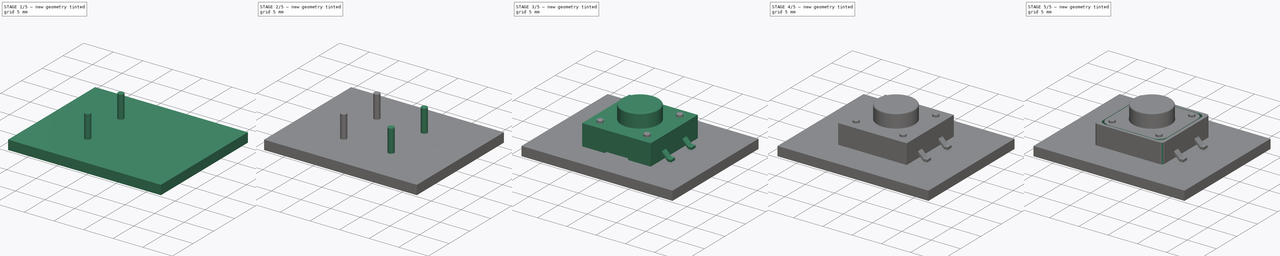
[diagram: build sequence overview — one tinted view per stage of 5, left to right]
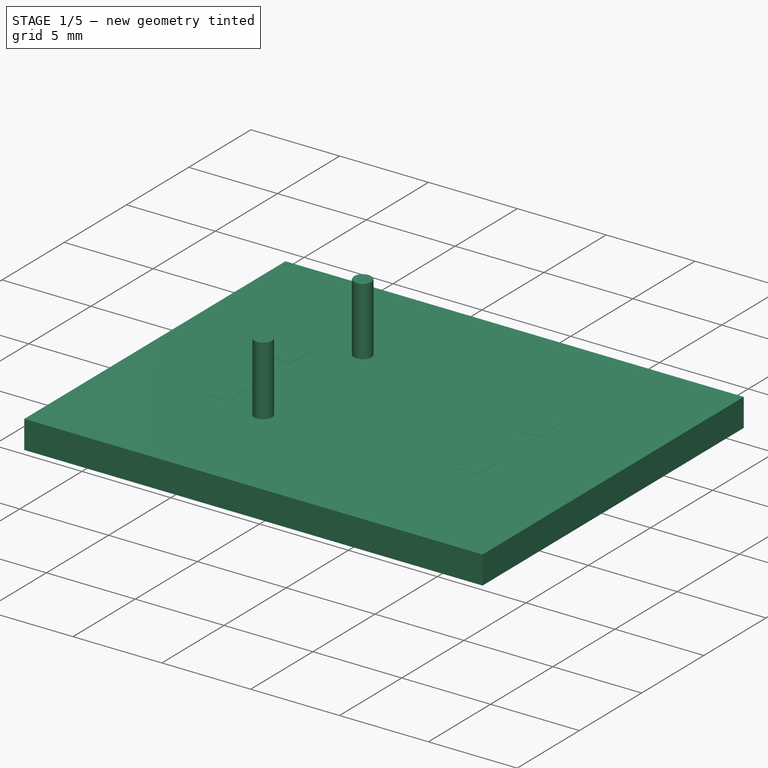
[diagram: stage 1 of 5 — iso view after this stage's code; geometry added in this stage tinted green]
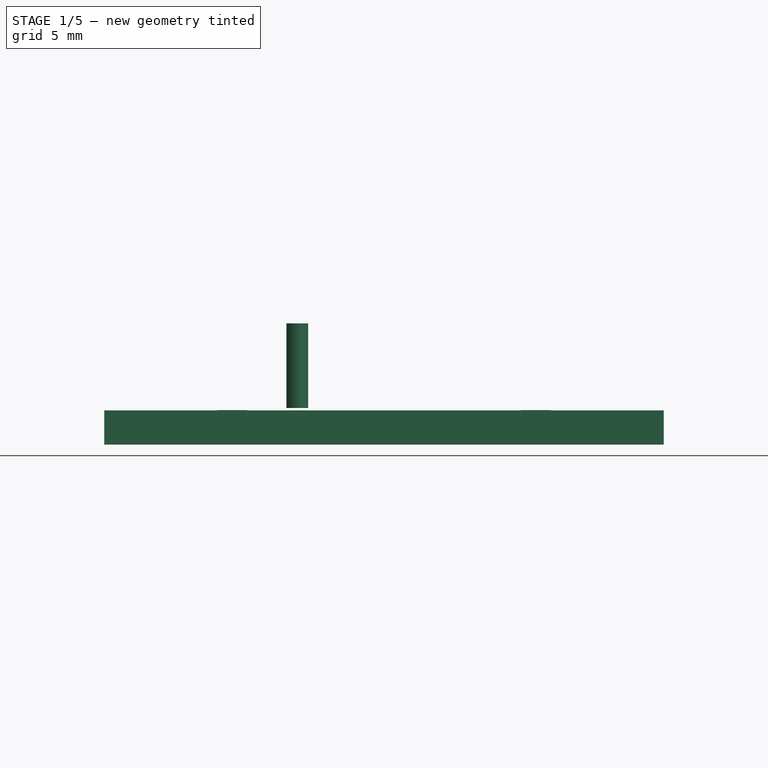
[diagram: stage 1 of 5 — front view after this stage's code; geometry added in this stage tinted green]
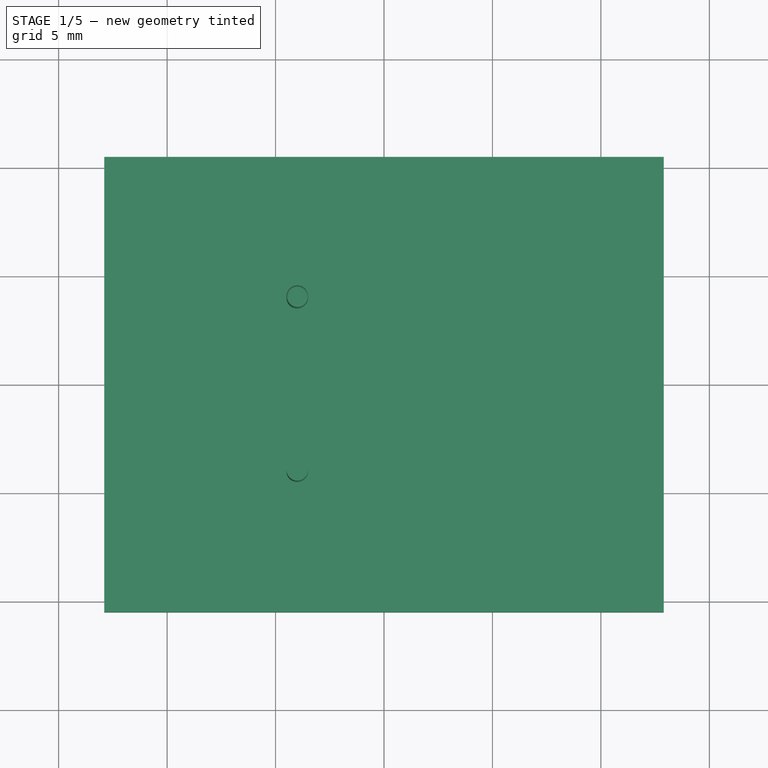
[diagram: stage 1 of 5 — top view after this stage's code; geometry added in this stage tinted green]
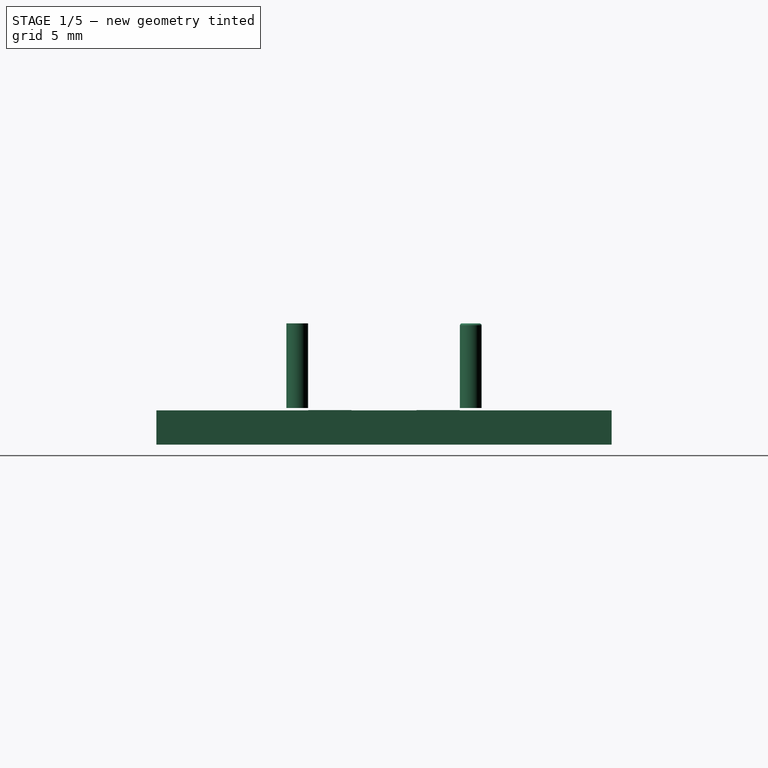
[diagram: stage 1 of 5 — right view after this stage's code; geometry added in this stage tinted green]
FCSTD DOCUMENT  (FreeCAD 0.18R16110 (Git))
Label: Bright_TSA123G60-250
License: All rights reserved
LicenseURL: http://en.wikipedia.org/wiki/All_rights_reserved
objects: Sketcher::SketchObject×9, PartDesign::Pocket×6, Part::Cylinder×5, Part::Fillet×5, Part::FeaturePython×4, PartDesign::Pad×3, PartDesign::Mirrored×3, PartDesign::Fillet×2, PartDesign::Plane×1, PartDesign::LinearPattern×1, PartDesign::MultiTransform×1, PartDesign::Body×1, App::DocumentObjectGroup×1, Part::Feature×1
note: 51 computed .brp shape members not serialized (recipe doc carries the construction recipe); baked Part::Feature solids carry a one-line shape summary decoded from their .brp

FEATURE [Part::Cylinder] Cylinder002
  Angle = 360
  AttacherType = Attacher::AttachEngine3D
  Height = 3.9
  Placement = pos=(-4,4,0.1) rot=(0,0,1;0rad)
  Radius = 0.5
FEATURE [Part::Cylinder] Cylinder004
  Angle = 360
  AttacherType = Attacher::AttachEngine3D
  Height = 3.9
  Placement = pos=(-4,-4,0.1) rot=(0,0,1;0rad)
  Radius = 0.5
FEATURE [Part::Fillet] Fillet006
  Base = -> Cylinder002
  Edges = 1 edges r=0.1: [Edge1]
FEATURE [Part::FeaturePython] FCrtYd_lines  label="FCrtYd"  # a2plus imported part (geometry in sourceFile) (typed FeaturePython)
  fixedPosition = true
FEATURE [Part::FeaturePython] Filk_lines  label="FrontSilk"  # a2plus imported part (geometry in sourceFile) (typed FeaturePython)
  fixedPosition = true
FEATURE [Part::FeaturePython] TopPads  # a2plus imported part (geometry in sourceFile) (typed FeaturePython)
  fixedPosition = true
FEATURE [Part::FeaturePython] newPCB  label="Pcb"  # a2plus imported part (geometry in sourceFile) (typed FeaturePython)
  fixedPosition = true
FEATURE [App::DocumentObjectGroup] TSA123G60_250_fp
  Group = -> [FCrtYd_lines,Filk_lines,TopPads,newPCB]
FEATURE [Part::Feature] Shape  label="Bright_TSA123G60-250"
  shape: bbox 14.8 x 11.5 x 6 mm, 93 faces (baked)
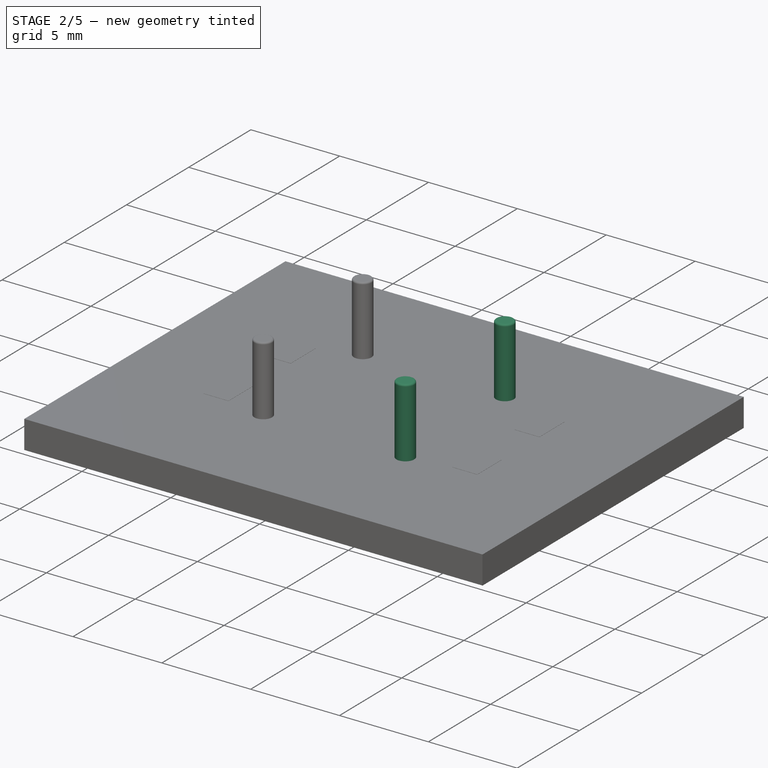
[diagram: stage 2 of 5 — iso view after this stage's code; geometry added in this stage tinted green]
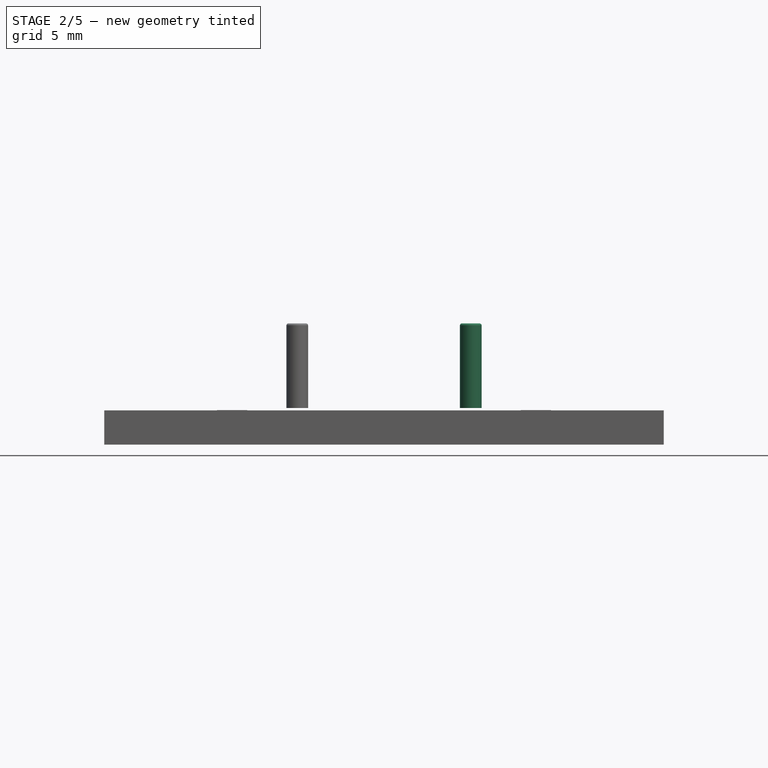
[diagram: stage 2 of 5 — front view after this stage's code; geometry added in this stage tinted green]
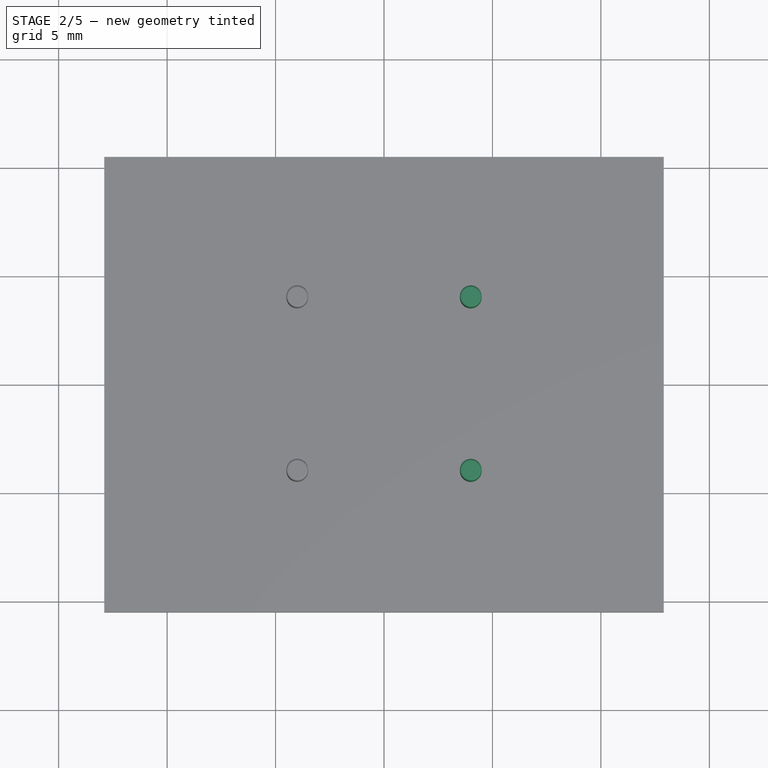
[diagram: stage 2 of 5 — top view after this stage's code; geometry added in this stage tinted green]
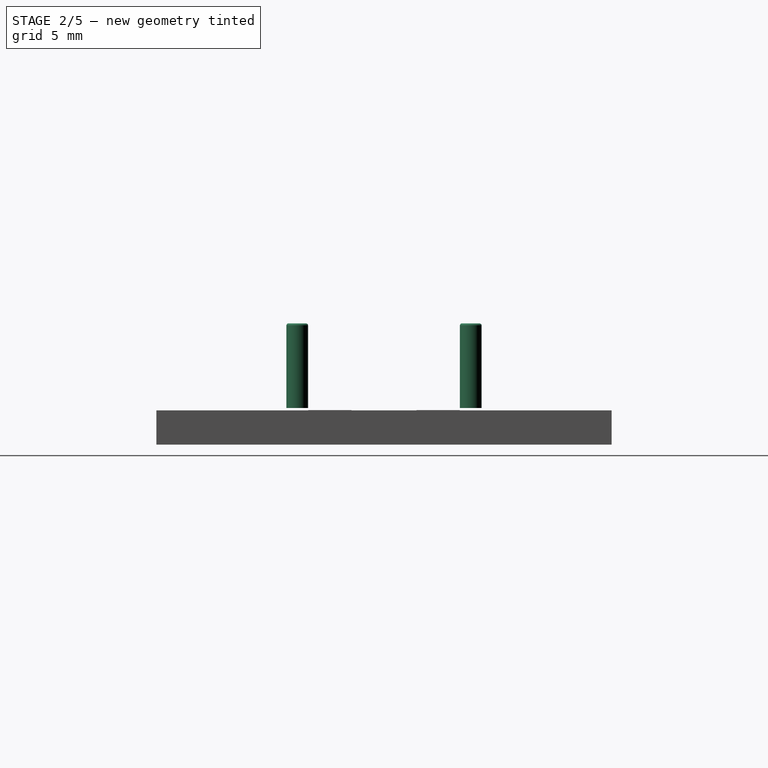
[diagram: stage 2 of 5 — right view after this stage's code; geometry added in this stage tinted green]
FEATURE [PartDesign::Body] Body
  Group = -> [Sketch,Pad,DatumPlane,Sketch001,Pad001,MultiTransform,LinearPattern,Mirrored,Sketch002,Pocket,Sketch003,Pocket001,Sketch005,Pocket002,Mirrored001,Sketch006,Pocket003,Mirrored002,Fillet,Sketch007,Pocket004,Sketch008,Pocket005,Fillet001,Sketch009,Pad002]
  Origin = -> Origin
  Tip = -> Pad002
FEATURE [Part::Cylinder] Cylinder001
  Angle = 360
  AttacherType = Attacher::AttachEngine3D
  Height = 3.9
  Placement = pos=(4,4,0.1) rot=(0,0,1;0rad)
  Radius = 0.5
FEATURE [Part::Cylinder] Cylinder003
  Angle = 360
  AttacherType = Attacher::AttachEngine3D
  Height = 3.9
  Placement = pos=(4,-4,0.1) rot=(0,0,1;0rad)
  Radius = 0.5
FEATURE [Part::Fillet] Fillet003
  Base = -> Cylinder001
  Edges = 1 edges r=0.1: [Edge1]
FEATURE [Part::Fillet] Fillet004
  Base = -> Cylinder003
  Edges = 1 edges r=0.1: [Edge1]
FEATURE [Part::Fillet] Fillet005
  Base = -> Cylinder004
  Edges = 1 edges r=0.1: [Edge1]
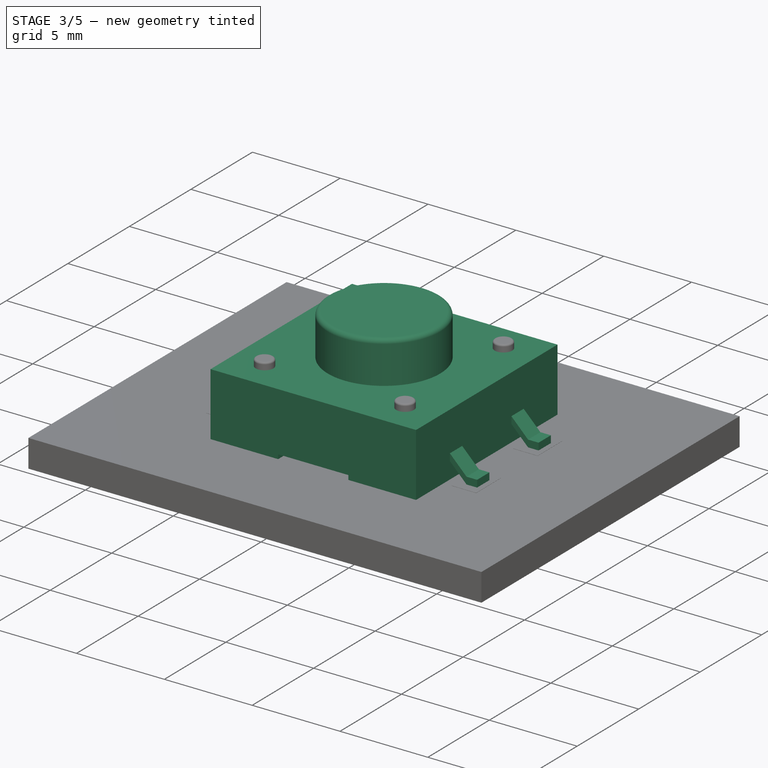
[diagram: stage 3 of 5 — iso view after this stage's code; geometry added in this stage tinted green]
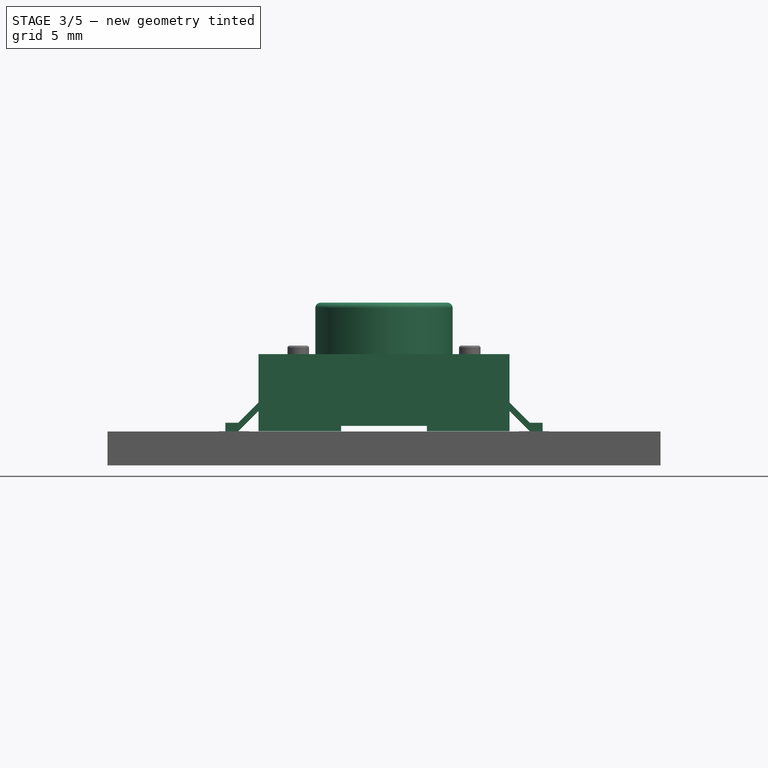
[diagram: stage 3 of 5 — front view after this stage's code; geometry added in this stage tinted green]
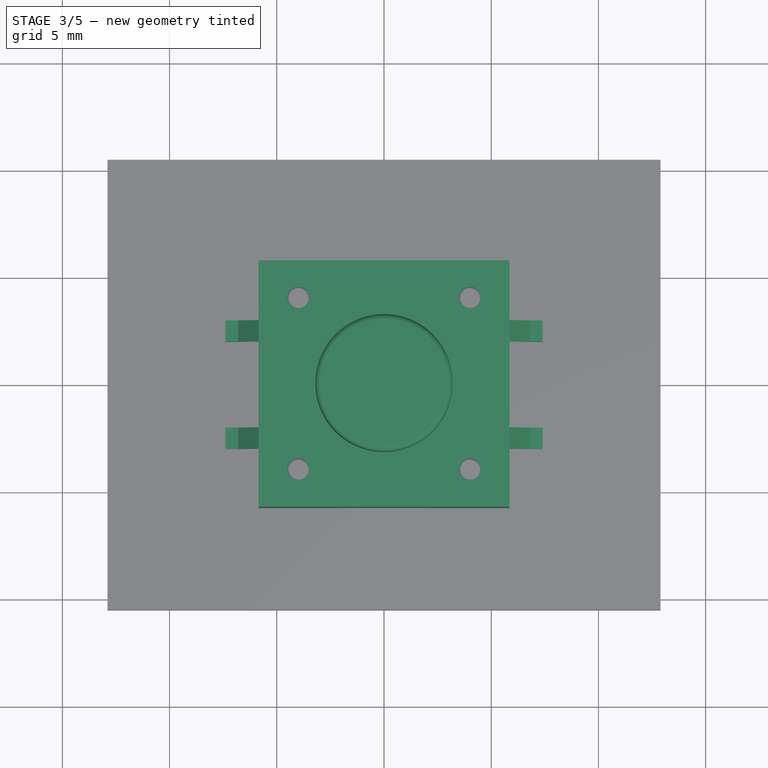
[diagram: stage 3 of 5 — top view after this stage's code; geometry added in this stage tinted green]
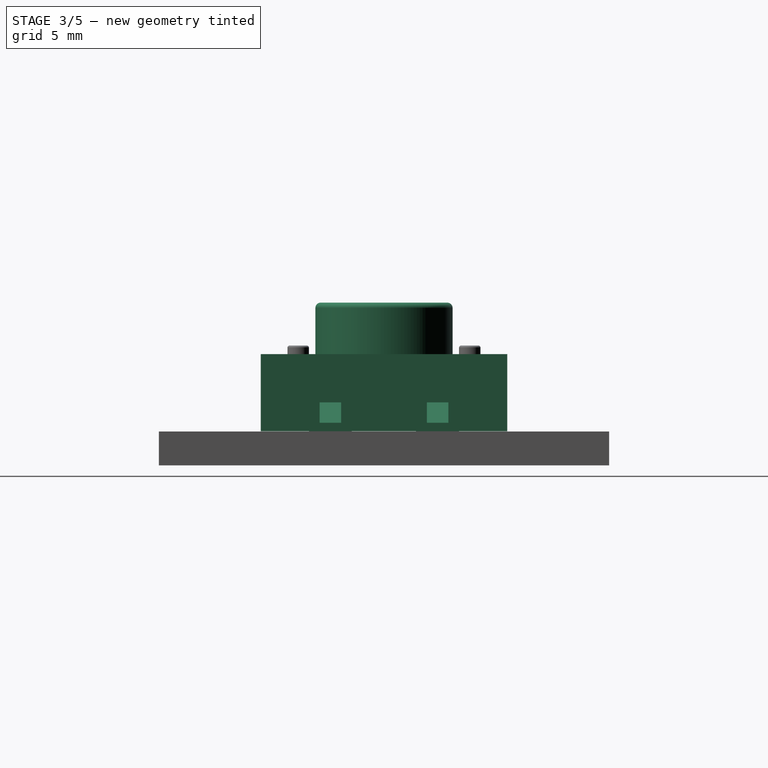
[diagram: stage 3 of 5 — right view after this stage's code; geometry added in this stage tinted green]
FEATURE [Sketcher::SketchObject] Sketch
  MapMode = 5
  Support = -> [XY_Plane]
  sketch-geometry (4):
    g0: LineSegment StartX=-5.85 StartY=5.75 StartZ=0 EndX=5.85 EndY=5.75 EndZ=0
    g1: LineSegment StartX=5.85 StartY=5.75 StartZ=0 EndX=5.85 EndY=-5.75 EndZ=0
    g2: LineSegment StartX=5.85 StartY=-5.75 StartZ=0 EndX=-5.85 EndY=-5.75 EndZ=0
    g3: LineSegment StartX=-5.85 StartY=-5.75 StartZ=0 EndX=-5.85 EndY=5.75 EndZ=0
  constraints (10):
    c: Coincident(g0,g1)
    c: Coincident(g1,g2)
    c: Coincident(g2,g3)
    c: Coincident(g3,g0)
    c: Horizontal(g2)
    c: Vertical(g3)
    c: Symmetric(g0,g0,g-2)
    c: Symmetric(g1,g0,g-1)
    c: DistanceX(g0,g0) = 11.7
    c: DistanceY(g1,g1) = 11.5
FEATURE [PartDesign::Pad] Pad
  Length = 3.6
  Length2 = 100
  Profile = -> Sketch
  Refine = true
  Type = 0
FEATURE [PartDesign::Plane] DatumPlane
  AttachmentOffset = pos=(0,0,2.5) rot=(0,0,1;0rad)
  Length = 24
  MapMode = 5
  Placement = pos=(0,-2.5,6e-16) rot=(1,0,0;1.5708rad)
  ResizeMode = 0
  Support = -> [XZ_Plane]
  Width = 24
FEATURE [Sketcher::SketchObject] Sketch001
  ExternalGeometry = -> [Pad]
  MapMode = 5
  Placement = pos=(0,-2.5,6e-16) rot=(1,0,0;1.5708rad)
  Support = -> [DatumPlane]
  expr: Constraints[14] = 14.8 / 2
  sketch-geometry (6):
    g0: LineSegment StartX=-7.4 StartY=0 StartZ=0 EndX=-6.8 EndY=0 EndZ=0
    g1: LineSegment StartX=-6.8 StartY=0 StartZ=0 EndX=-5.85 EndY=0.95 EndZ=0
    g2: LineSegment StartX=-5.85 StartY=0.95 StartZ=0 EndX=-5.85 EndY=1.35 EndZ=0
    g3: LineSegment StartX=-5.85 StartY=1.35 StartZ=0 EndX=-6.8 EndY=0.4 EndZ=0
    g4: LineSegment StartX=-6.8 StartY=0.4 StartZ=0 EndX=-7.4 EndY=0.4 EndZ=0
    g5: LineSegment StartX=-7.4 StartY=0.4 StartZ=0 EndX=-7.4 EndY=0 EndZ=0
  constraints (18):
    c: PointOnObject(g0,g-1)
    c: PointOnObject(g0,g-1)
    c: Coincident(g1,g0)
    c: PointOnObject(g1,g-3)
    c: Coincident(g2,g1)
    c: PointOnObject(g2,g-3)
    c: Coincident(g3,g2)
    c: Coincident(g4,g3)
    c: Coincident(g5,g4)
    c: Coincident(g5,g0)
    c: Vertical(g5)
    c: Horizontal(g4)
    c: DistanceY(g5,g5) = 0.4
    c: Parallel(g3,g1)
    c: DistanceX(g0,g-1) = 7.4
    c: Angle(g-1,g1) = 0.785398
    c: DistanceX(g0,g0) = 0.6
    c: Equal(g5,g2)
FEATURE [PartDesign::Pad] Pad001
  BaseFeature = -> Pad
  Length = 1
  Length2 = 100
  Midplane = true
  Profile = -> Sketch001
  Refine = true
  Type = 0
FEATURE [PartDesign::LinearPattern] LinearPattern
  Direction = -> Sketch001 [N_Axis]
  Length = 5
  Occurrences = 2
  Refine = true
  Reversed = true
FEATURE [PartDesign::Mirrored] Mirrored
  MirrorPlane = -> Sketch001 [V_Axis]
  Refine = true
FEATURE [PartDesign::MultiTransform] MultiTransform
  BaseFeature = -> Pad001
  Originals = -> [Pad001]
  Refine = true
  Transformations = -> [LinearPattern,Mirrored]
FEATURE [Sketcher::SketchObject] Sketch002
  MapMode = 5
  Placement = pos=(0,-5.75,0) rot=(1,0,0;1.5708rad)
  Support = -> [MultiTransform]
  sketch-geometry (4):
    g0: LineSegment StartX=-2 StartY=0 StartZ=0 EndX=2 EndY=0 EndZ=0
    g1: LineSegment StartX=2 StartY=0 StartZ=0 EndX=2 EndY=0.25 EndZ=0
    g2: LineSegment StartX=2 StartY=0.25 StartZ=0 EndX=-2 EndY=0.25 EndZ=0
    g3: LineSegment StartX=-2 StartY=0.25 StartZ=0 EndX=-2 EndY=0 EndZ=0
  constraints (11):
    c: Coincident(g0,g1)
    c: Coincident(g1,g2)
    c: Coincident(g2,g3)
    c: Coincident(g3,g0)
    c: Horizontal(g0)
    c: Vertical(g1)
    c: Vertical(g3)
    c: PointOnObject(g0,g-1)
    c: Symmetric(g1,g2,g-2)
    c: DistanceX(g2,g2) = 4
    c: DistanceY(g1,g1) = 0.25
FEATURE [PartDesign::Pocket] Pocket
  BaseFeature = -> MultiTransform
  Length = 5
  Length2 = 100
  Profile = -> Sketch002
  Refine = true
  Type = 1
FEATURE [Part::Cylinder] Cylinder
  Angle = 360
  AttacherType = Attacher::AttachEngine3D
  Height = 3.4
  Placement = pos=(0,0,2.6) rot=(0,0,1;0rad)
  Radius = 3.2
  expr: Radius = 6.4 / 2
FEATURE [Part::Fillet] Fillet002
  Base = -> Cylinder
  Edges = 1 edges r=0.25: [Edge1]
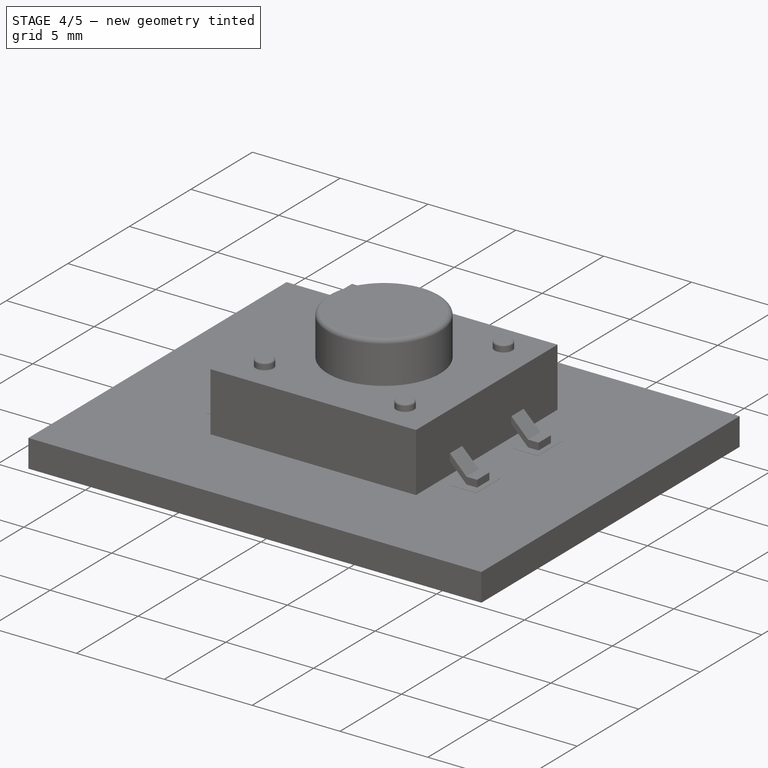
[diagram: stage 4 of 5 — iso view after this stage's code; geometry added in this stage tinted green]
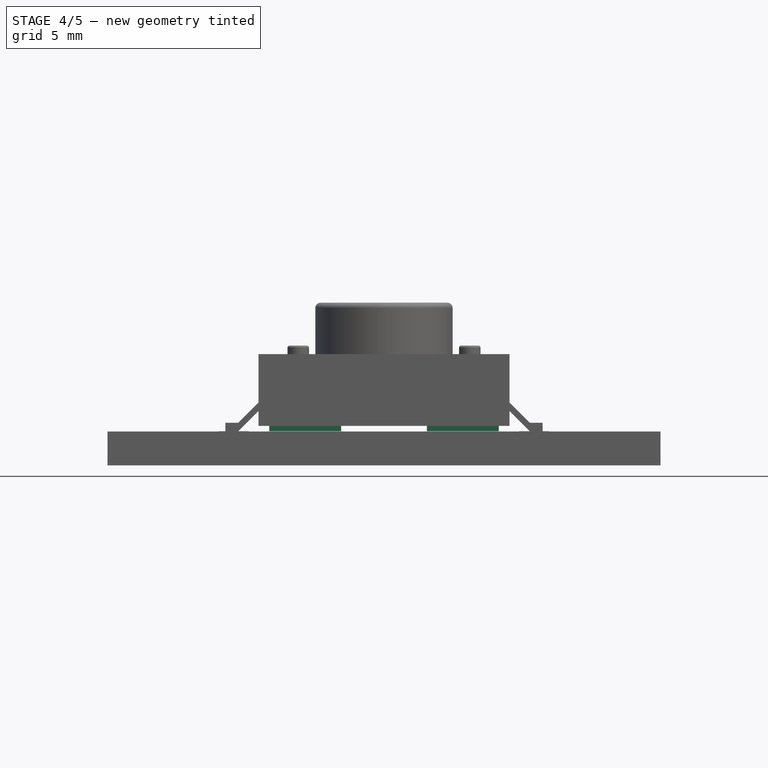
[diagram: stage 4 of 5 — front view after this stage's code; geometry added in this stage tinted green]
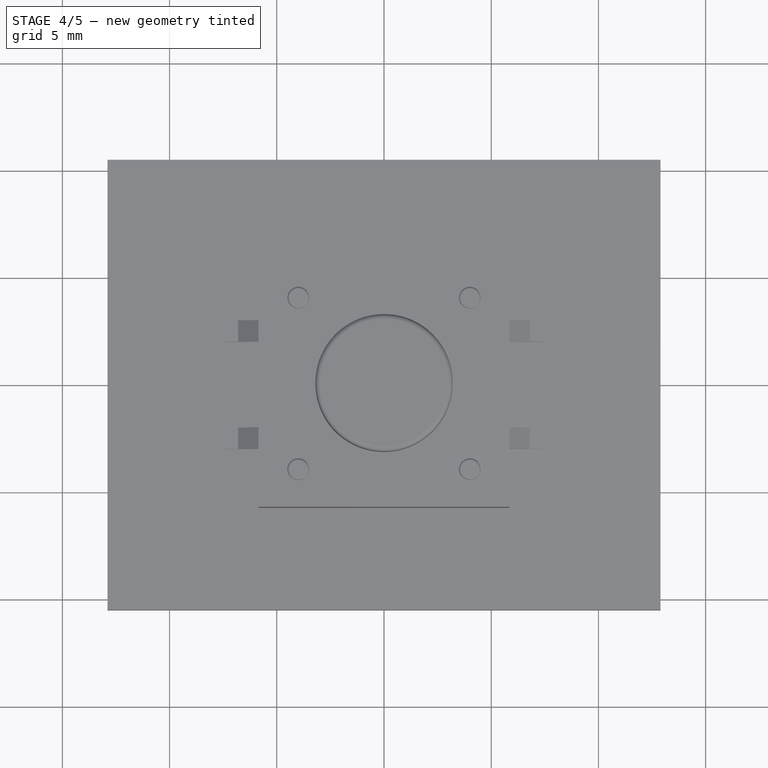
[diagram: stage 4 of 5 — top view after this stage's code; geometry added in this stage tinted green]
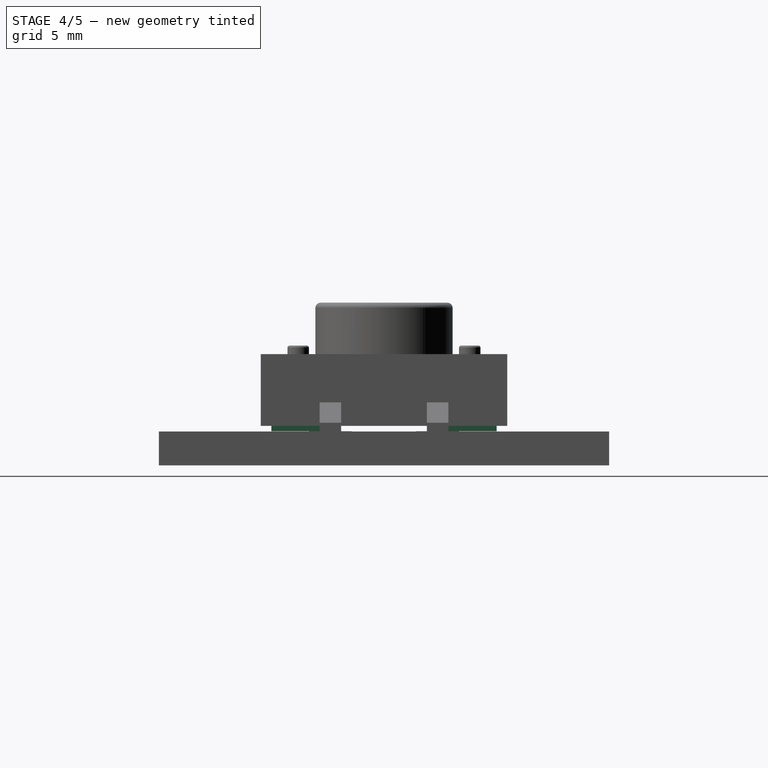
[diagram: stage 4 of 5 — right view after this stage's code; geometry added in this stage tinted green]
FEATURE [Sketcher::SketchObject] Sketch003
  MapMode = 5
  Placement = pos=(5.85,0,0) rot=(0.57735,0.57735,0.57735;2.0944rad)
  Support = -> [Pocket]
  sketch-geometry (4):
    g0: LineSegment StartX=-2 StartY=0 StartZ=0 EndX=2 EndY=0 EndZ=0
    g1: LineSegment StartX=2 StartY=0 StartZ=0 EndX=2 EndY=0.25 EndZ=0
    g2: LineSegment StartX=2 StartY=0.25 StartZ=0 EndX=-2 EndY=0.25 EndZ=0
    g3: LineSegment StartX=-2 StartY=0.25 StartZ=0 EndX=-2 EndY=0 EndZ=0
  constraints (11):
    c: Coincident(g0,g1)
    c: Coincident(g1,g2)
    c: Coincident(g2,g3)
    c: Coincident(g3,g0)
    c: Horizontal(g0)
    c: Vertical(g1)
    c: Vertical(g3)
    c: PointOnObject(g0,g-1)
    c: Symmetric(g1,g2,g-2)
    c: DistanceX(g2,g2) = 4
    c: DistanceY(g1,g1) = 0.25
FEATURE [PartDesign::Pocket] Pocket001
  BaseFeature = -> Pocket
  Length = 0
  Length2 = 100
  Profile = -> Sketch003
  Refine = true
  Type = 3
  UpToFace = -> Pocket [Face9]
FEATURE [Sketcher::SketchObject] Sketch005
  ExternalGeometry = -> [Pocket001]
  MapMode = 5
  Placement = pos=(0,-5.75,0) rot=(1,0,0;1.5708rad)
  Support = -> [Pocket001]
  sketch-geometry (5):
    g0: LineSegment StartX=5.85 StartY=0 StartZ=0 EndX=5.35 EndY=0 EndZ=0
    g1: LineSegment StartX=5.35 StartY=0 StartZ=0 EndX=5.35 EndY=0.25 EndZ=0
    g2: LineSegment StartX=5.35 StartY=0.25 StartZ=0 EndX=5.85 EndY=0.25 EndZ=0
    g3: LineSegment StartX=5.85 StartY=0.25 StartZ=0 EndX=5.85 EndY=0 EndZ=0
    g4: LineSegment [constr] StartX=2 StartY=0.25 StartZ=0 EndX=5.35 EndY=0.25 EndZ=0
  constraints (13):
    c: Coincident(g0,g1)
    c: Coincident(g1,g2)
    c: Coincident(g2,g3)
    c: Coincident(g3,g0)
    c: Horizontal(g0)
    c: Horizontal(g2)
    c: Vertical(g1)
    c: Vertical(g3)
    c: Coincident(g0,g-3)
    c: Coincident(g4,g-4)
    c: Coincident(g4,g1)
    c: Horizontal(g4)
    c: DistanceX(g2,g2) = 0.5
FEATURE [PartDesign::Pocket] Pocket002
  BaseFeature = -> Pocket001
  Length = 5
  Length2 = 100
  Profile = -> Sketch005
  Refine = true
  Type = 1
FEATURE [PartDesign::Mirrored] Mirrored001
  BaseFeature = -> Pocket002
  MirrorPlane = -> Sketch005 [V_Axis]
  Originals = -> [Pocket002]
  Refine = true
FEATURE [Sketcher::SketchObject] Sketch006
  ExternalGeometry = -> [Mirrored001]
  MapMode = 5
  Placement = pos=(5.85,0,0) rot=(0.57735,0.57735,0.57735;2.0944rad)
  Support = -> [Mirrored001]
  sketch-geometry (4):
    g0: LineSegment StartX=-5.75 StartY=0 StartZ=0 EndX=-5.25 EndY=0 EndZ=0
    g1: LineSegment StartX=-5.25 StartY=0 StartZ=0 EndX=-5.25 EndY=0.25 EndZ=0
    g2: LineSegment StartX=-5.25 StartY=0.25 StartZ=0 EndX=-5.75 EndY=0.25 EndZ=0
    g3: LineSegment StartX=-5.75 StartY=0.25 StartZ=0 EndX=-5.75 EndY=0 EndZ=0
  constraints (11):
    c: Coincident(g0,g1)
    c: Coincident(g1,g2)
    c: Coincident(g2,g3)
    c: Coincident(g3,g0)
    c: Horizontal(g0)
    c: Horizontal(g2)
    c: Vertical(g1)
    c: Vertical(g3)
    c: Coincident(g0,g-4)
    c: PointOnObject(g1,g-3)
    c: DistanceX(g2,g2) = 0.5
FEATURE [PartDesign::Pocket] Pocket003
  BaseFeature = -> Mirrored001
  Length = 5
  Length2 = 100
  Profile = -> Sketch006
  Refine = true
  Type = 1
FEATURE [PartDesign::Mirrored] Mirrored002
  BaseFeature = -> Pocket003
  MirrorPlane = -> Sketch006 [V_Axis]
  Originals = -> [Pocket003]
  Refine = true
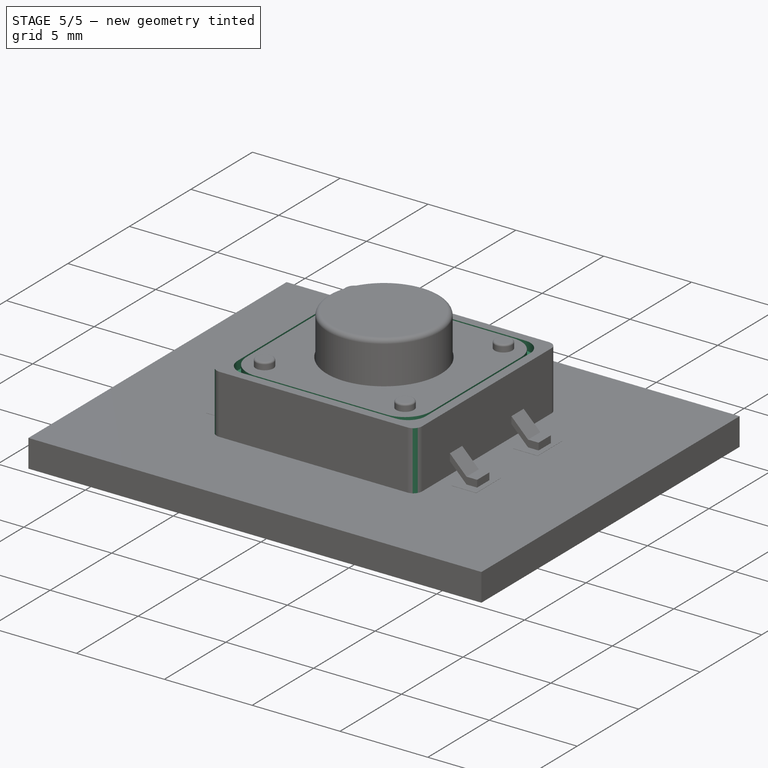
[diagram: stage 5 of 5 — iso view after this stage's code; geometry added in this stage tinted green]
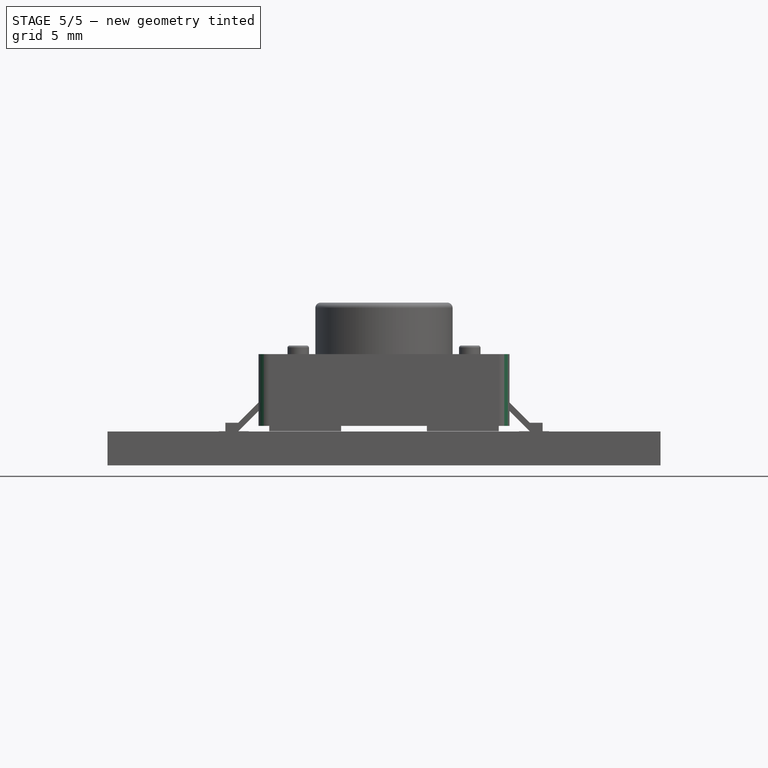
[diagram: stage 5 of 5 — front view after this stage's code; geometry added in this stage tinted green]
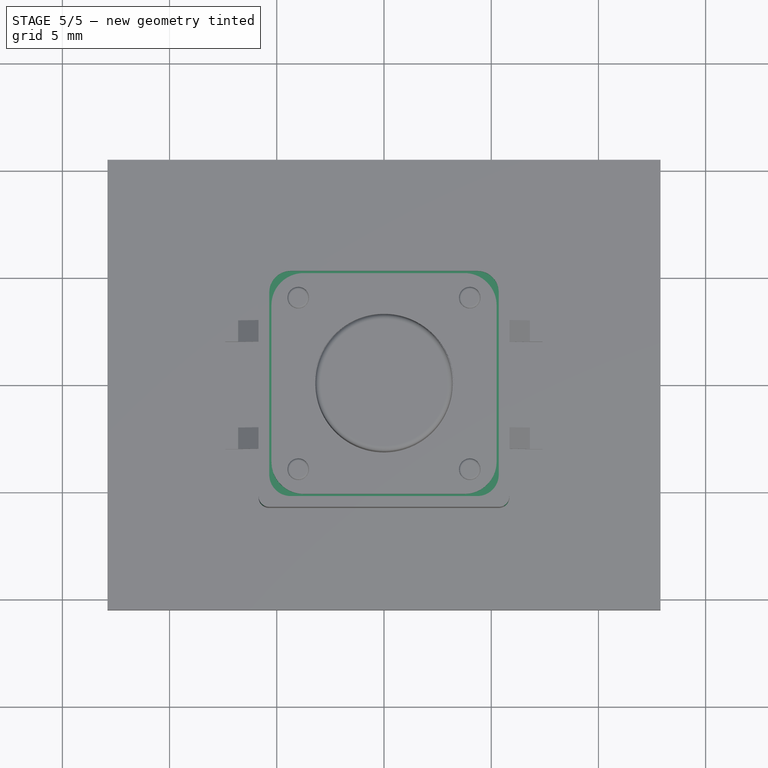
[diagram: stage 5 of 5 — top view after this stage's code; geometry added in this stage tinted green]
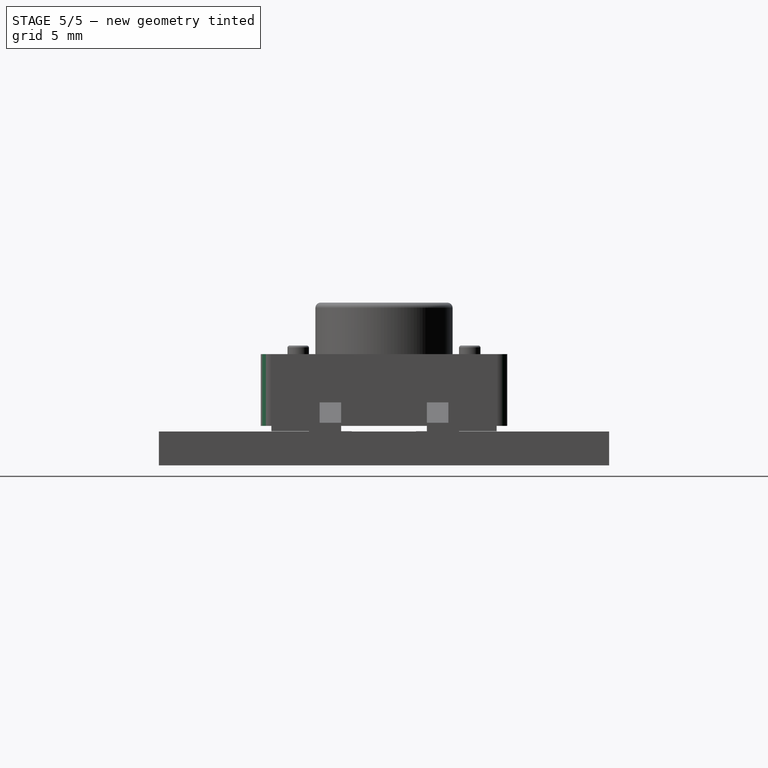
[diagram: stage 5 of 5 — right view after this stage's code; geometry added in this stage tinted green]
FEATURE [PartDesign::Fillet] Fillet
  Base = -> Mirrored002 [Edge4,Edge19,Edge2,Edge6]
  BaseFeature = -> Mirrored002
  Radius = 0.5
FEATURE [Sketcher::SketchObject] Sketch007
  MapMode = 5
  Placement = pos=(0,0,3.6) rot=(0,0,1;0rad)
  Support = -> [Fillet]
  sketch-geometry (1):
    g0: Circle CenterX=0 CenterY=0 CenterZ=0 NormalX=0 NormalY=0 NormalZ=1 AngleXU=0 Radius=3.25
  constraints (2):
    c: Coincident(g0,g-1)
    c: Diameter(g0) = 6.5
FEATURE [PartDesign::Pocket] Pocket004
  BaseFeature = -> Fillet
  Length = 1
  Length2 = 100
  Profile = -> Sketch007
  Refine = true
  Type = 0
FEATURE [Sketcher::SketchObject] Sketch008
  ExternalGeometry = -> [Pocket004]
  MapMode = 5
  Placement = pos=(0,0,3.6) rot=(0,0,1;0rad)
  Support = -> [Pocket004]
  sketch-geometry (4):
    g0: LineSegment StartX=-5.35 StartY=5.25 StartZ=0 EndX=5.35 EndY=5.25 EndZ=0
    g1: LineSegment StartX=5.35 StartY=5.25 StartZ=0 EndX=5.35 EndY=-5.25 EndZ=0
    g2: LineSegment StartX=5.35 StartY=-5.25 StartZ=0 EndX=-5.35 EndY=-5.25 EndZ=0
    g3: LineSegment StartX=-5.35 StartY=-5.25 StartZ=0 EndX=-5.35 EndY=5.25 EndZ=0
  constraints (10):
    c: Coincident(g0,g1)
    c: Coincident(g1,g2)
    c: Coincident(g2,g3)
    c: Coincident(g3,g0)
    c: Horizontal(g2)
    c: Vertical(g1)
    c: Symmetric(g0,g0,g-2)
    c: Symmetric(g0,g2,g-1)
    c: DistanceY(g0,g-3) = 0.5
    c: DistanceX(g-4,g0) = 0.5
FEATURE [PartDesign::Pocket] Pocket005
  BaseFeature = -> Pocket004
  Length = 0.5
  Length2 = 100
  Profile = -> Sketch008
  Refine = true
  Type = 0
FEATURE [PartDesign::Fillet] Fillet001
  Base = -> Pocket005 [Edge93,Edge94,Edge96,Edge98]
  BaseFeature = -> Pocket005
  Radius = 1
FEATURE [Sketcher::SketchObject] Sketch009
  ExternalGeometry = -> [Fillet001]
  MapMode = 5
  Placement = pos=(0,0,3.1) rot=(0,0,1;0rad)
  Support = -> [Fillet001]
  sketch-geometry (9):
    g0: LineSegment StartX=-3.75 StartY=5.15 StartZ=0 EndX=3.75 EndY=5.15 EndZ=0
    g1: LineSegment StartX=5.25 StartY=3.65 StartZ=0 EndX=5.25 EndY=-3.65 EndZ=0
    g2: LineSegment StartX=3.75 StartY=-5.15 StartZ=0 EndX=-3.75 EndY=-5.15 EndZ=0
    g3: LineSegment StartX=-5.25 StartY=-3.65 StartZ=0 EndX=-5.25 EndY=3.65 EndZ=0
    g4: ArcOfCircle CenterX=3.75 CenterY=3.65 CenterZ=0 NormalX=0 NormalY=0 NormalZ=1 AngleXU=0 Radius=1.5 StartAngle=0 EndAngle=1.5708
    g5: ArcOfCircle CenterX=3.75 CenterY=-3.65 CenterZ=0 NormalX=0 NormalY=0 NormalZ=1 AngleXU=0 Radius=1.5 StartAngle=4.71239 EndAngle=6.28319
    g6: ArcOfCircle CenterX=-3.75 CenterY=-3.65 CenterZ=0 NormalX=0 NormalY=0 NormalZ=1 AngleXU=0 Radius=1.5 StartAngle=3.14159 EndAngle=4.71239
    g7: ArcOfCircle CenterX=-3.75 CenterY=3.65 CenterZ=0 NormalX=0 NormalY=0 NormalZ=1 AngleXU=0 Radius=1.5 StartAngle=1.5708 EndAngle=3.14159
    g8: Circle CenterX=0 CenterY=0 CenterZ=0 NormalX=0 NormalY=0 NormalZ=1 AngleXU=0 Radius=3.25
  constraints (20):
    c: Horizontal(g2)
    c: Vertical(g3)
    c: Tangent(g0,g4) = 1.5708
    c: Tangent(g1,g4) = 1.5708
    c: Tangent(g1,g5) = 1.5708
    c: Tangent(g2,g5) = 1.5708
    c: Tangent(g2,g6) = 1.5708
    c: Tangent(g3,g6) = 1.5708
    c: Tangent(g3,g7) = 1.5708
    c: Tangent(g0,g7) = 1.5708
    c: DistanceY(g0,g-5) = 0.1
    c: DistanceX(g-5,g3) = 0.1
    c: Equal(g7,g4)
    c: Equal(g4,g5)
    c: Equal(g5,g6)
    c: Radius(g7) = 1.5
    c: Symmetric(g0,g0,g-2)
    c: Symmetric(g1,g1,g-1)
    c: Coincident(g8,g-1)
    c: Diameter(g8) = 6.5
FEATURE [PartDesign::Pad] Pad002
  BaseFeature = -> Fillet001
  Length = 10
  Length2 = 100
  Profile = -> Sketch009
  Refine = true
  Type = 3
  UpToFace = -> Fillet001 [Face1]
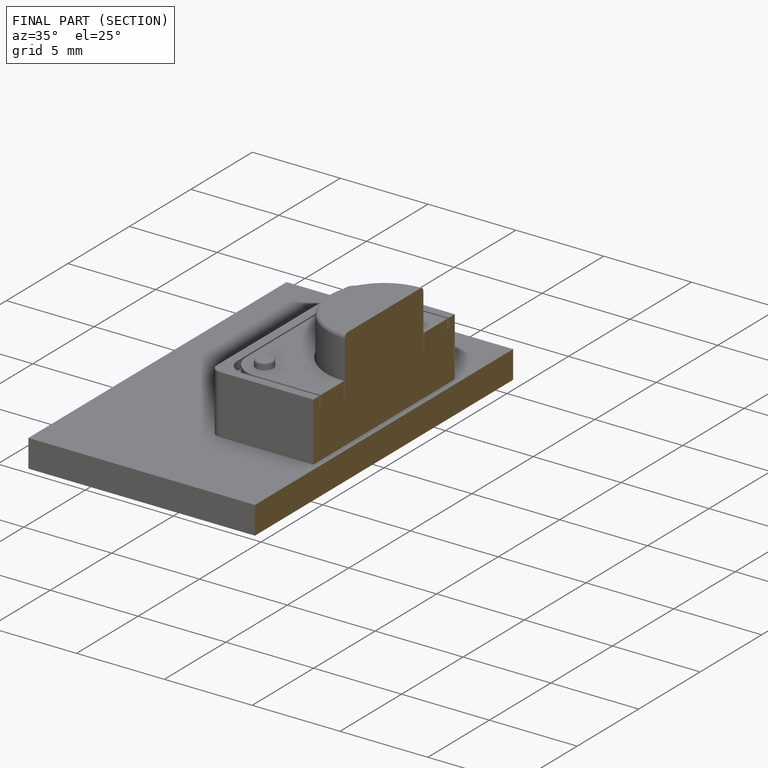
[diagram: finished part — half-section view (interior)]
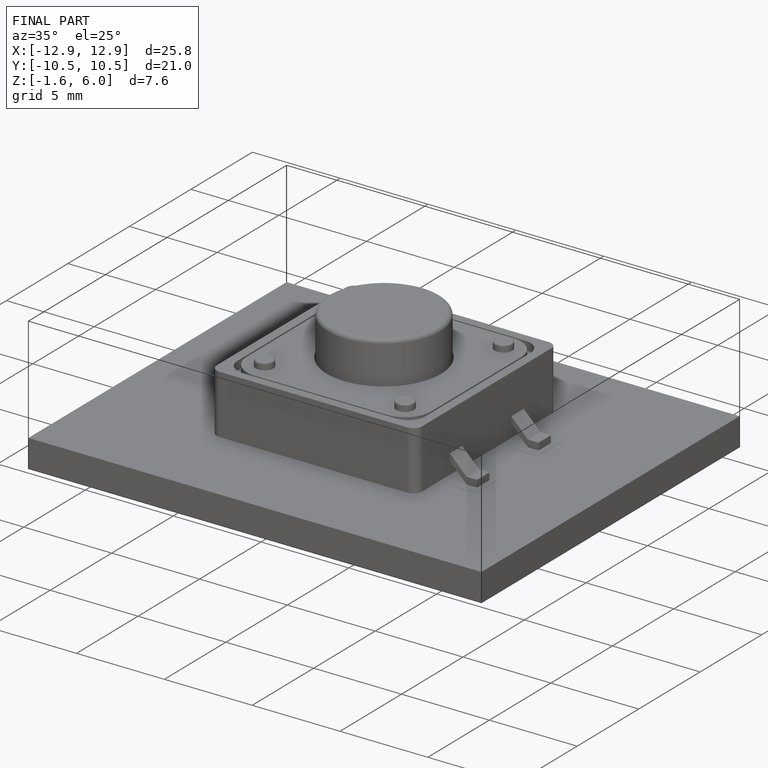
[diagram: finished part — iso view with bounding-box wireframe]
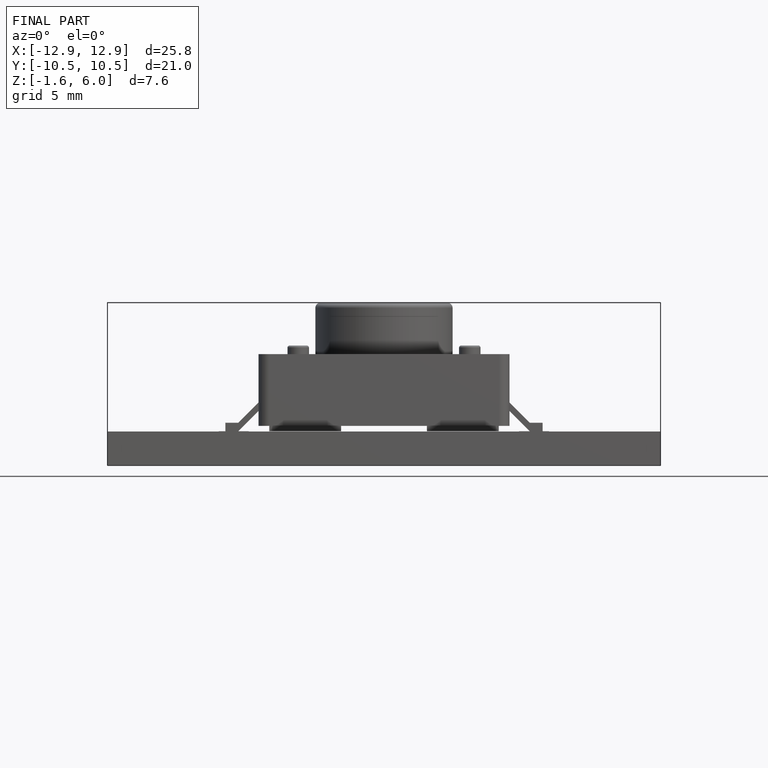
[diagram: finished part — front view with bounding-box wireframe]
